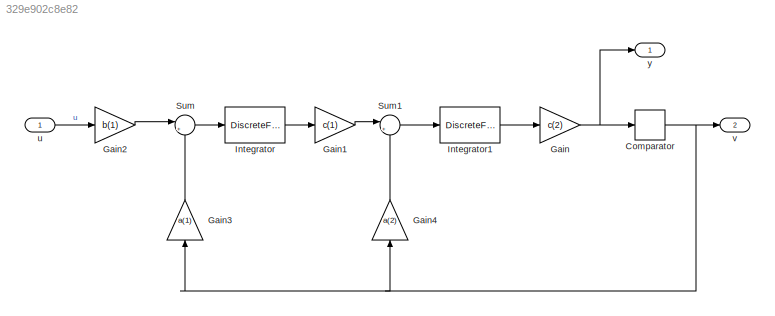
MODEL slx_329e902c8e82
KIND model
CONFIG AbsTol = 1e-6
CONFIG EnableMultiTasking = off
CONFIG FixedStep = auto
CONFIG MaxStep = auto
CONFIG MinStep = auto
CONFIG RelTol = 1e-3
CONFIG SampleTimeConstraint = Unconstrained
CONFIG SolverName = FixedStepDiscrete
CONFIG StartTime = 0.0
CONFIG StopTime = 1024
BLOCK [Relay] Comparator
  OffOutputValue = -1
BLOCK [Gain] Gain
  Gain = c(2)
BLOCK [Gain] Gain1
  Gain = c(1)
BLOCK [Gain] Gain2
  Gain = b(1)
BLOCK [Gain] Gain3
  Gain = a(1)
  NameLocation = right
BLOCK [Gain] Gain4
  Gain = a(2)
  NameLocation = right
BLOCK [DiscreteFilter] Integrator
  Denominator = [1 -1]
  InputPortMap = u0
  Numerator = [0 1]
  SampleTime = Ts
BLOCK [DiscreteFilter] Integrator1
  Denominator = [1 -1]
  InputPortMap = u0
  Numerator = [0 1]
  SampleTime = Ts
BLOCK [Sum] Sum
  InputSameDT = on
  Inputs = |+-
  OutDataTypeStr = Inherit: Same as first input
  SaturateOnIntegerOverflow = on
BLOCK [Sum] Sum1
  InputSameDT = on
  Inputs = |+-
  OutDataTypeStr = Inherit: Same as first input
  SaturateOnIntegerOverflow = on
BLOCK [Inport] u
  IconDisplay = Signal name
BLOCK [Outport] v
  IconDisplay = Signal name
  Port = 2
  SignalName = v
  VectorParamsAs1DForOutWhenUnconnected = off
BLOCK [Outport] y
  IconDisplay = Signal name
  SignalName = y
  VectorParamsAs1DForOutWhenUnconnected = off
NET Comparator:1 -> Gain3:1, Gain4:1, v:1
LINE Gain1:1 -> Sum1:1
LINE Gain2:1 -> Sum:1
LINE Gain3:1 -> Sum:2
LINE Gain4:1 -> Sum1:2
NET Gain:1 -> Comparator:1, y:1
LINE Integrator1:1 -> Gain:1
LINE Integrator:1 -> Gain1:1
LINE Sum1:1 -> Integrator1:1
LINE Sum:1 -> Integrator:1
LINE u:1 -> Gain2:1
note: NET lines group one-source signal fan-out (src -> all destinations, sorted); 1:1 wires keep LINE
